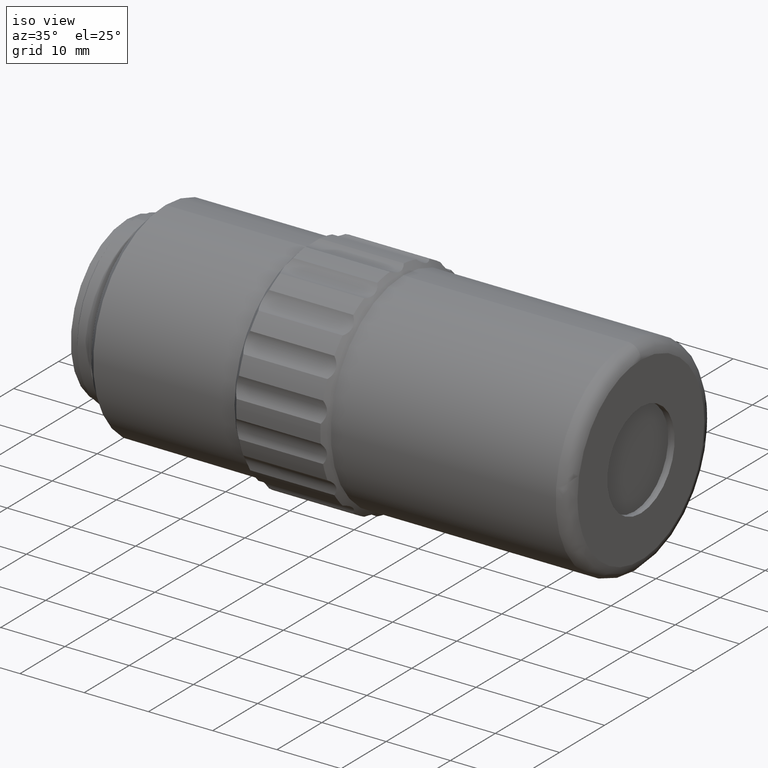
[diagram: clean part render]
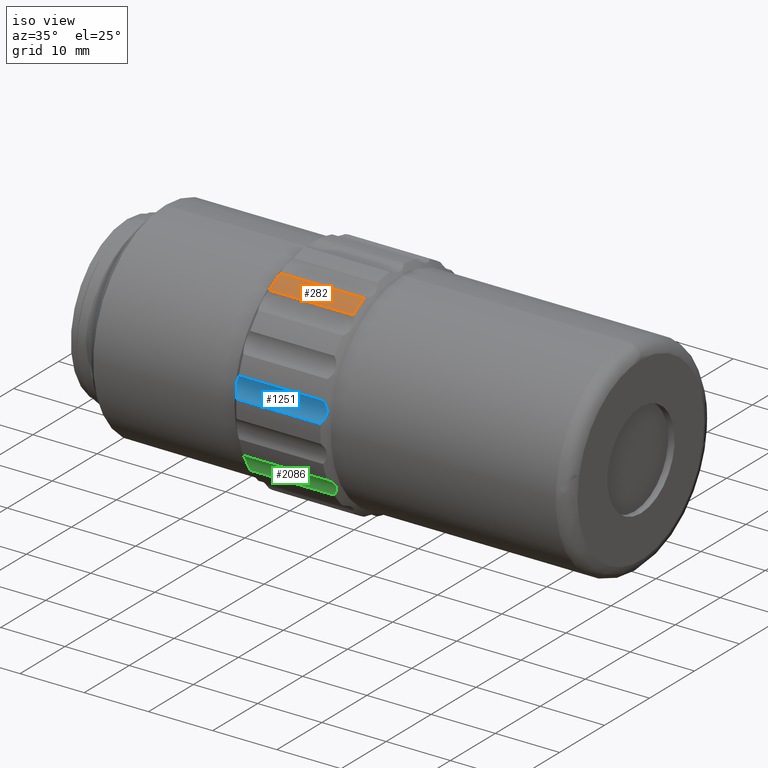
[diagram: same view with three faces highlighted in distinct colors, each labeled with its STEP entity id]
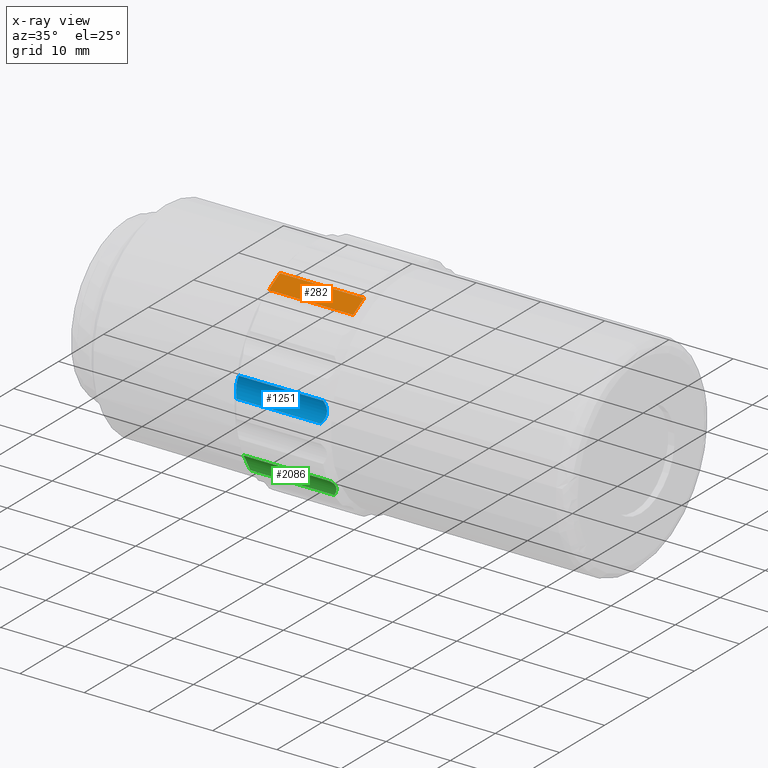
[diagram: x-ray of the same camera — body ghosted, the three highlighted faces saturated]
A machine part, iso view with three faces highlighted in distinct colors.
The next image is the same camera in x-ray (body ghosted, the three faces saturated) — at least one of them is partly hidden behind the body in this view.
Their STEP definitions:

[orange] entity #282 — the highlighted cylindrical surface (partial cylindrical patch) has radius 17 mm, axis along (-1, 0, 0).
#194 = DIRECTION ( 'NONE',  ( 1.000000000000000000, -0.000000000000000000, -0.000000000000000000 ) ) ;
#222 = VECTOR ( 'NONE', #1036, 1000.000000000000000 ) ;
#277 = ORIENTED_EDGE ( 'NONE', *, *, #939, .T. ) ;
#282 = ADVANCED_FACE ( 'NONE', ( #1240 ), #618, .T. ) ;
#287 = AXIS2_PLACEMENT_3D ( 'NONE', #1601, #1284, #1424 ) ;
#349 = VECTOR ( 'NONE', #801, 1000.000000000000000 ) ;
#350 = CARTESIAN_POINT ( 'NONE',  ( 53.58686043487880823, 36.32378364731472686, 13.96297718956139100 ) ) ;
#534 = DIRECTION ( 'NONE',  ( 1.000000000000000000, -0.000000000000000000, -0.000000000000000000 ) ) ;
#551 = CARTESIAN_POINT ( 'NONE',  ( 19.34685803487879596, 46.02096199999999726, 0.000000000000000000 ) ) ;
#618 = CYLINDRICAL_SURFACE ( 'NONE', #287, 17.00000000000000000 ) ;
#638 = EDGE_CURVE ( 'NONE', #1206, #1043, #1227, .T. ) ;
#692 = AXIS2_PLACEMENT_3D ( 'NONE', #551, #534, #1188 ) ;
#766 = CARTESIAN_POINT ( 'NONE',  ( 19.34685803487879596, 38.77725821771979753, 15.37949139323466952 ) ) ;
#789 = EDGE_LOOP ( 'NONE', ( #1671, #2073, #1154, #277 ) ) ;
#801 = DIRECTION ( 'NONE',  ( -1.000000000000000000, 0.000000000000000000, 0.000000000000000000 ) ) ;
#939 = EDGE_CURVE ( 'NONE', #1043, #1492, #1003, .T. ) ;
#1003 = CIRCLE ( 'NONE', #692, 17.00000000000000000 ) ;
#1036 = DIRECTION ( 'NONE',  ( 1.000000000000000000, -0.000000000000000000, -0.000000000000000000 ) ) ;
#1043 = VERTEX_POINT ( 'NONE', #766 ) ;
#1109 = CARTESIAN_POINT ( 'NONE',  ( 25.94685803487879738, 38.77725821771979753, 15.37949139323467840 ) ) ;
#1154 = ORIENTED_EDGE ( 'NONE', *, *, #638, .T. ) ;
#1185 = DIRECTION ( 'NONE',  ( 0.000000000000000000, 1.000000000000000000, 0.000000000000000000 ) ) ;
#1188 = DIRECTION ( 'NONE',  ( 0.000000000000000000, 0.000000000000000000, 1.000000000000000000 ) ) ;
#1206 = VERTEX_POINT ( 'NONE', #1362 ) ;
#1227 = LINE ( 'NONE', #1109, #349 ) ;
#1240 = FACE_OUTER_BOUND ( 'NONE', #789, .T. ) ;
#1284 = DIRECTION ( 'NONE',  ( -1.000000000000000000, 0.000000000000000000, 0.000000000000000000 ) ) ;
#1362 = CARTESIAN_POINT ( 'NONE',  ( 32.44685803487878673, 38.77725821771978332, 15.37949139323467307 ) ) ;
#1420 = VERTEX_POINT ( 'NONE', #1598 ) ;
#1424 = DIRECTION ( 'NONE',  ( 0.000000000000000000, 0.000000000000000000, 1.000000000000000000 ) ) ;
#1492 = VERTEX_POINT ( 'NONE', #1634 ) ;
#1564 = EDGE_CURVE ( 'NONE', #1492, #1420, #1835, .T. ) ;
#1598 = CARTESIAN_POINT ( 'NONE',  ( 32.44685803487879383, 36.32378364731472686, 13.96297718956139100 ) ) ;
#1601 = CARTESIAN_POINT ( 'NONE',  ( 25.94685803487879738, 46.02096199999999726, 0.000000000000000000 ) ) ;
#1614 = CIRCLE ( 'NONE', #1715, 17.00000000000000000 ) ;
#1634 = CARTESIAN_POINT ( 'NONE',  ( 19.34685803487878886, 36.32378364731472686, 13.96297718956139455 ) ) ;
#1653 = CARTESIAN_POINT ( 'NONE',  ( 32.44685803487878673, 46.02096199999999726, 0.000000000000000000 ) ) ;
#1671 = ORIENTED_EDGE ( 'NONE', *, *, #1564, .T. ) ;
#1715 = AXIS2_PLACEMENT_3D ( 'NONE', #1653, #194, #1185 ) ;
#1835 = LINE ( 'NONE', #350, #222 ) ;
#2021 = EDGE_CURVE ( 'NONE', #1206, #1420, #1614, .T. ) ;
#2073 = ORIENTED_EDGE ( 'NONE', *, *, #2021, .F. ) ;

[blue] entity #1251 — the highlighted cylindrical surface (edge-blend (fillet) strip) has radius 3 mm, axis along (-1, 0, 0).
#27 = CARTESIAN_POINT ( 'NONE',  ( 32.44685803487877962, 29.61726367720591568, 4.463034991433923793 ) ) ;
#31 = CARTESIAN_POINT ( 'NONE',  ( 32.44685803487877962, 29.08007986503451647, 1.416514203673290728 ) ) ;
#98 = CYLINDRICAL_SURFACE ( 'NONE', #897, 2.999999999999999556 ) ;
#102 = CARTESIAN_POINT ( 'NONE',  ( 32.44685803487877962, 29.61726367720591568, 4.463034991433923793 ) ) ;
#104 = VERTEX_POINT ( 'NONE', #31 ) ;
#113 = VECTOR ( 'NONE', #628, 1000.000000000000000 ) ;
#133 = B_SPLINE_CURVE_WITH_KNOTS ( 'NONE', 3,
 ( #1401, #878, #870, #1693, #394, #1707, #748, #554, #1549, #2028, #545, #237, #1525, #1534 ),
 .UNSPECIFIED., .F., .F.,
 ( 4, 2, 2, 2, 2, 2, 4 ),
 ( 8.322266947800291141E-18, 0.0008570537395405600656, 0.001285580609310831316, 0.001714107479081103001, 0.002142634348851374902, 0.002571161218621645719, 0.003428214958162191690 ),
 .UNSPECIFIED. ) ;
#179 = CARTESIAN_POINT ( 'NONE',  ( 53.58686043487880823, 29.08007986503450226, 1.416514203673268080 ) ) ;
#208 = CARTESIAN_POINT ( 'NONE',  ( 32.93404516599887444, 29.81145125225690151, 3.153385542406650810 ) ) ;
#231 = ORIENTED_EDGE ( 'NONE', *, *, #535, .F. ) ;
#237 = CARTESIAN_POINT ( 'NONE',  ( 19.07378008189505536, 29.77132104384356737, 3.975612932441877856 ) ) ;
#284 = CARTESIAN_POINT ( 'NONE',  ( 53.58686043487880823, 29.61726367720591568, 4.463034991433923793 ) ) ;
#291 = VERTEX_POINT ( 'NONE', #1611 ) ;
#321 = VECTOR ( 'NONE', #814, 1000.000000000000000 ) ;
#394 = CARTESIAN_POINT ( 'NONE',  ( 18.90699781735018092, 29.62277607563511239, 2.314480119284873627 ) ) ;
#436 = EDGE_CURVE ( 'NONE', #104, #566, #839, .T. ) ;
#477 = CARTESIAN_POINT ( 'NONE',  ( 32.71993598786254154, 29.39155459811817650, 1.821850393098595644 ) ) ;
#501 = CARTESIAN_POINT ( 'NONE',  ( 32.85210940846931038, 29.81459741884976111, 3.571575765922793355 ) ) ;
#513 = CARTESIAN_POINT ( 'NONE',  ( 32.59397570363886842, 29.24340012357269458, 1.604150078087035025 ) ) ;
#535 = EDGE_CURVE ( 'NONE', #566, #291, #133, .T. ) ;
#545 = CARTESIAN_POINT ( 'NONE',  ( 18.94098152749740649, 29.81471811820887652, 3.569201001427933839 ) ) ;
#554 = CARTESIAN_POINT ( 'NONE',  ( 18.84671480941285537, 29.79624668935392506, 3.004082092195018650 ) ) ;
#566 = VERTEX_POINT ( 'NONE', #1560 ) ;
#599 = DIRECTION ( 'NONE',  ( 0.000000000000000000, 0.000000000000000000, 1.000000000000000000 ) ) ;
#628 = DIRECTION ( 'NONE',  ( 1.000000000000000000, -0.000000000000000000, -0.000000000000000000 ) ) ;
#637 = CARTESIAN_POINT ( 'NONE',  ( 32.94700126034472021, 29.74726016049911692, 2.726265681694551635 ) ) ;
#649 = CARTESIAN_POINT ( 'NONE',  ( 32.71832649179923891, 29.77062519033893651, 3.979600334337169087 ) ) ;
#676 = CARTESIAN_POINT ( 'NONE',  ( 32.59371544402078058, 29.70640130127866385, 4.231266864385898607 ) ) ;
#748 = CARTESIAN_POINT ( 'NONE',  ( 18.84700383090777365, 29.74613216397480642, 2.721276841238314592 ) ) ;
#750 = DIRECTION ( 'NONE',  ( -1.000000000000000000, 0.000000000000000000, 0.000000000000000000 ) ) ;
#781 = EDGE_CURVE ( 'NONE', #992, #104, #1650, .T. ) ;
#814 = DIRECTION ( 'NONE',  ( -1.000000000000000000, 0.000000000000000000, 0.000000000000000000 ) ) ;
#821 = LINE ( 'NONE', #284, #113 ) ;
#839 = LINE ( 'NONE', #179, #321 ) ;
#856 = CARTESIAN_POINT ( 'NONE',  ( 32.85273454226015843, 29.57133557555759396, 2.188910012077406986 ) ) ;
#870 = CARTESIAN_POINT ( 'NONE',  ( 19.07538957795835088, 29.38953693794697841, 1.818341456876844786 ) ) ;
#878 = CARTESIAN_POINT ( 'NONE',  ( 19.20000062573680211, 29.24311120064135139, 1.603818139432590772 ) ) ;
#894 = ORIENTED_EDGE ( 'NONE', *, *, #436, .F. ) ;
#897 = AXIS2_PLACEMENT_3D ( 'NONE', #1995, #750, #599 ) ;
#992 = VERTEX_POINT ( 'NONE', #102 ) ;
#1157 = CARTESIAN_POINT ( 'NONE',  ( 32.88806413580805099, 29.62488855559159973, 2.319880045867564355 ) ) ;
#1164 = ORIENTED_EDGE ( 'NONE', *, *, #781, .F. ) ;
#1189 = ORIENTED_EDGE ( 'NONE', *, *, #1436, .F. ) ;
#1251 = ADVANCED_FACE ( 'NONE', ( #1347 ), #98, .F. ) ;
#1347 = FACE_OUTER_BOUND ( 'NONE', #1762, .T. ) ;
#1401 = CARTESIAN_POINT ( 'NONE',  ( 19.34685803487881017, 29.08007986503451647, 1.416514203673290728 ) ) ;
#1436 = EDGE_CURVE ( 'NONE', #291, #992, #821, .T. ) ;
#1525 = CARTESIAN_POINT ( 'NONE',  ( 19.19974036611871426, 29.70655927031906884, 4.230856126619377378 ) ) ;
#1534 = CARTESIAN_POINT ( 'NONE',  ( 19.34685803487881017, 29.61726367720591924, 4.463034991433914911 ) ) ;
#1549 = CARTESIAN_POINT ( 'NONE',  ( 18.85870489934783123, 29.81087088656429884, 3.145384777660000353 ) ) ;
#1560 = CARTESIAN_POINT ( 'NONE',  ( 19.34685803487881017, 29.08007986503451647, 1.416514203673290728 ) ) ;
#1611 = CARTESIAN_POINT ( 'NONE',  ( 19.34685803487881017, 29.61726367720591924, 4.463034991433914911 ) ) ;
#1650 = B_SPLINE_CURVE_WITH_KNOTS ( 'NONE', 3,
 ( #27, #676, #649, #501, #1659, #208, #1986, #637, #1782, #1157, #856, #477, #513, #1806 ),
 .UNSPECIFIED., .F., .F.,
 ( 4, 2, 2, 2, 2, 2, 4 ),
 ( 2.301370753934467615E-17, 0.0008570537395405523678, 0.001285580609310820258, 0.001714107479081088256, 0.002142634348851356254, 0.002571161218621624035, 0.003428214958162163501 ),
 .UNSPECIFIED. ) ;
#1659 = CARTESIAN_POINT ( 'NONE',  ( 32.88671825240740532, 29.82010887047672298, 3.433610011084513136 ) ) ;
#1693 = CARTESIAN_POINT ( 'NONE',  ( 18.94160666128827941, 29.57040993796760375, 2.186719745017569494 ) ) ;
#1707 = CARTESIAN_POINT ( 'NONE',  ( 18.85967090375870470, 29.71048298862091386, 2.580766064489520062 ) ) ;
#1762 = EDGE_LOOP ( 'NONE', ( #231, #894, #1164, #1189 ) ) ;
#1782 = CARTESIAN_POINT ( 'NONE',  ( 32.93501117040975856, 29.71267404596757444, 2.588482820839963949 ) ) ;
#1806 = CARTESIAN_POINT ( 'NONE',  ( 32.44685803487877962, 29.08007986503451647, 1.416514203673290728 ) ) ;
#1986 = CARTESIAN_POINT ( 'NONE',  ( 32.94671223884979128, 29.79689300327163792, 3.009155866290929904 ) ) ;
#1995 = CARTESIAN_POINT ( 'NONE',  ( 53.58686043487880823, 26.81721081626189829, 3.386139464505129926 ) ) ;
#2028 = CARTESIAN_POINT ( 'NONE',  ( 18.90565193394953170, 29.82024706863964880, 3.427813229224494496 ) ) ;

[green] entity #2086 — the highlighted cylindrical surface (edge-blend (fillet) strip) has radius 3 mm, axis along (-1, 0, 0).
#58 = CARTESIAN_POINT ( 'NONE',  ( 32.59397570363893237, 32.13747616120608797, -9.555558641669259501 ) ) ;
#154 = DIRECTION ( 'NONE',  ( -1.000000000000000000, 0.000000000000000000, 0.000000000000000000 ) ) ;
#177 = B_SPLINE_CURVE_WITH_KNOTS ( 'NONE', 3,
 ( #435, #2071, #1773, #1113, #1446, #308, #1602, #1932, #299, #963, #1612, #1295, #320, #976 ),
 .UNSPECIFIED., .F., .F.,
 ( 4, 2, 2, 2, 2, 2, 4 ),
 ( 3.469446951953614189E-18, 0.0008570537395405861949, 0.001285580609310878371, 0.001714107479081170438, 0.002142634348851462506, 0.002571161218621756742, 0.003428214958162340443 ),
 .UNSPECIFIED. ) ;
#229 = CARTESIAN_POINT ( 'NONE',  ( 32.88806413580812915, 31.96965089949768668, -8.762061639736757002 ) ) ;
#276 = VECTOR ( 'NONE', #1116, 1000.000000000000000 ) ;
#299 = CARTESIAN_POINT ( 'NONE',  ( 18.85870489934775662, 31.58149741732382054, -8.010141189208832557 ) ) ;
#308 = CARTESIAN_POINT ( 'NONE',  ( 18.85967090375863009, 31.86752573897104313, -8.507192313874572420 ) ) ;
#320 = CARTESIAN_POINT ( 'NONE',  ( 19.19974036611866808, 30.80386254956551539, -7.245672108642428277 ) ) ;
#337 = EDGE_CURVE ( 'NONE', #1180, #998, #1099, .T. ) ;
#379 = CARTESIAN_POINT ( 'NONE',  ( 32.94671223884989075, 31.65835599381003362, -8.123483399945421013 ) ) ;
#398 = CARTESIAN_POINT ( 'NONE',  ( 53.58686043487880823, 29.13346662620350003, -9.750000000000010658 ) ) ;
#430 = FACE_OUTER_BOUND ( 'NONE', #1604, .T. ) ;
#435 = CARTESIAN_POINT ( 'NONE',  ( 19.34685803487878175, 32.13297559991000441, -9.804276299192858701 ) ) ;
#465 = ORIENTED_EDGE ( 'NONE', *, *, #1353, .F. ) ;
#512 = CARTESIAN_POINT ( 'NONE',  ( 32.71993598786259838, 32.11103400804057628, -9.293558664531980540 ) ) ;
#542 = CARTESIAN_POINT ( 'NONE',  ( 32.93404516599894549, 31.57679921079044405, -8.003639195957664043 ) ) ;
#563 = B_SPLINE_CURVE_WITH_KNOTS ( 'NONE', 3,
 ( #686, #1530, #1826, #1658, #994, #542, #379, #675, #1007, #229, #1975, #512, #58, #1327 ),
 .UNSPECIFIED., .F., .F.,
 ( 4, 2, 2, 2, 2, 2, 4 ),
 ( 8.673617379884035472E-19, 0.0008570537395405953022, 0.001285580609310886611, 0.001714107479081175859, 0.002142634348851465542, 0.002571161218621754573, 0.003428214958162343045 ),
 .UNSPECIFIED. ) ;
#592 = DIRECTION ( 'NONE',  ( 0.000000000000000000, 0.000000000000000000, 1.000000000000000000 ) ) ;
#641 = CARTESIAN_POINT ( 'NONE',  ( 25.94685803487879738, 32.13297559990998309, -9.804276299192858701 ) ) ;
#675 = CARTESIAN_POINT ( 'NONE',  ( 32.94700126034479837, 31.80217333596844398, -8.372093230236085759 ) ) ;
#686 = CARTESIAN_POINT ( 'NONE',  ( 32.44685803487880804, 30.58621645913232001, -7.125210880294336135 ) ) ;
#753 = CYLINDRICAL_SURFACE ( 'NONE', #1383, 3.000000000000000000 ) ;
#924 = CARTESIAN_POINT ( 'NONE',  ( 53.58686043487880823, 30.58621645913232001, -7.125210880294336135 ) ) ;
#963 = CARTESIAN_POINT ( 'NONE',  ( 18.90565193394945709, 31.40713848021169241, -7.787761549644949710 ) ) ;
#976 = CARTESIAN_POINT ( 'NONE',  ( 19.34685803487878886, 30.58621645913231646, -7.125210880294334359 ) ) ;
#993 = CARTESIAN_POINT ( 'NONE',  ( 32.44685803487880094, 32.13297559991000441, -9.804276299192871136 ) ) ;
#994 = CARTESIAN_POINT ( 'NONE',  ( 32.88671825240747637, 31.40330651472126533, -7.783409789179908778 ) ) ;
#998 = VERTEX_POINT ( 'NONE', #1927 ) ;
#1007 = CARTESIAN_POINT ( 'NONE',  ( 32.93501117040983672, 31.86424395090698525, -8.499872551038858859 ) ) ;
#1024 = ORIENTED_EDGE ( 'NONE', *, *, #1533, .F. ) ;
#1056 = EDGE_CURVE ( 'NONE', #1135, #1366, #1567, .T. ) ;
#1099 = LINE ( 'NONE', #641, #1489 ) ;
#1113 = CARTESIAN_POINT ( 'NONE',  ( 18.94160666128820480, 32.01351164868651722, -8.899086528648508576 ) ) ;
#1116 = DIRECTION ( 'NONE',  ( 1.000000000000000000, -0.000000000000000000, -0.000000000000000000 ) ) ;
#1135 = VERTEX_POINT ( 'NONE', #1456 ) ;
#1180 = VERTEX_POINT ( 'NONE', #993 ) ;
#1295 = CARTESIAN_POINT ( 'NONE',  ( 19.07378008189499141, 31.01754010897463587, -7.399571673583174025 ) ) ;
#1327 = CARTESIAN_POINT ( 'NONE',  ( 32.44685803487880094, 32.13297559991000441, -9.804276299192871136 ) ) ;
#1353 = EDGE_CURVE ( 'NONE', #998, #1135, #177, .T. ) ;
#1366 = VERTEX_POINT ( 'NONE', #1911 ) ;
#1383 = AXIS2_PLACEMENT_3D ( 'NONE', #398, #2053, #592 ) ;
#1400 = ORIENTED_EDGE ( 'NONE', *, *, #1056, .F. ) ;
#1446 = CARTESIAN_POINT ( 'NONE',  ( 18.90699781735010632, 31.97150365186636378, -8.767556099430423799 ) ) ;
#1456 = CARTESIAN_POINT ( 'NONE',  ( 19.34685803487878886, 30.58621645913231646, -7.125210880294334359 ) ) ;
#1489 = VECTOR ( 'NONE', #154, 1000.000000000000000 ) ;
#1530 = CARTESIAN_POINT ( 'NONE',  ( 32.59371544402083742, 30.80347752111280712, -7.245459005800692687 ) ) ;
#1533 = EDGE_CURVE ( 'NONE', #1366, #1180, #563, .T. ) ;
#1567 = LINE ( 'NONE', #924, #276 ) ;
#1602 = CARTESIAN_POINT ( 'NONE',  ( 18.84700383090770259, 31.80451600533113066, -8.376639965934788989 ) ) ;
#1604 = EDGE_LOOP ( 'NONE', ( #1024, #1400, #465, #1857 ) ) ;
#1612 = CARTESIAN_POINT ( 'NONE',  ( 18.94098152749734254, 31.31202075032436127, -7.683006173254996796 ) ) ;
#1658 = CARTESIAN_POINT ( 'NONE',  ( 32.85210940846936722, 31.31040182005778760, -7.681264582162520504 ) ) ;
#1773 = CARTESIAN_POINT ( 'NONE',  ( 19.07538957795828694, 32.11174389140486340, -9.297543592584496253 ) ) ;
#1826 = CARTESIAN_POINT ( 'NONE',  ( 32.71832649179928865, 31.01444400173102878, -7.396964432529726352 ) ) ;
#1857 = ORIENTED_EDGE ( 'NONE', *, *, #337, .F. ) ;
#1911 = CARTESIAN_POINT ( 'NONE',  ( 32.44685803487880804, 30.58621645913232001, -7.125210880294336135 ) ) ;
#1927 = CARTESIAN_POINT ( 'NONE',  ( 19.34685803487878175, 32.13297559991000441, -9.804276299192858701 ) ) ;
#1932 = CARTESIAN_POINT ( 'NONE',  ( 18.84671480941278077, 31.66112224774806450, -8.127785578975515790 ) ) ;
#1975 = CARTESIAN_POINT ( 'NONE',  ( 32.85273454226025791, 32.01281285169071822, -8.896813698364468337 ) ) ;
#2053 = DIRECTION ( 'NONE',  ( -1.000000000000000000, 0.000000000000000000, 0.000000000000000000 ) ) ;
#2071 = CARTESIAN_POINT ( 'NONE',  ( 19.20000062573673816, 32.13746819945428967, -9.555998637511402549 ) ) ;
#2086 = ADVANCED_FACE ( 'NONE', ( #430 ), #753, .F. ) ;